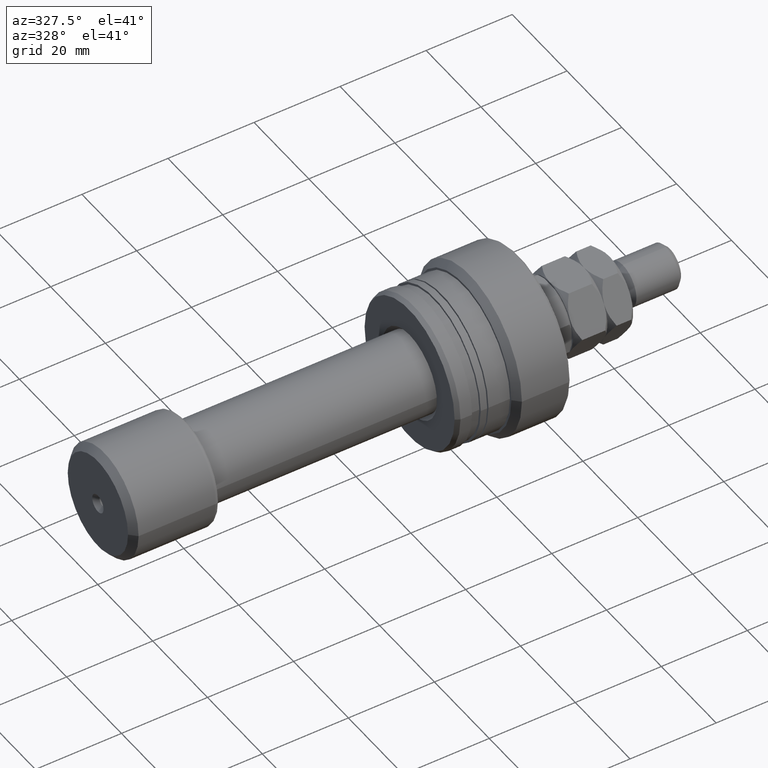
[diagram: clean part render]
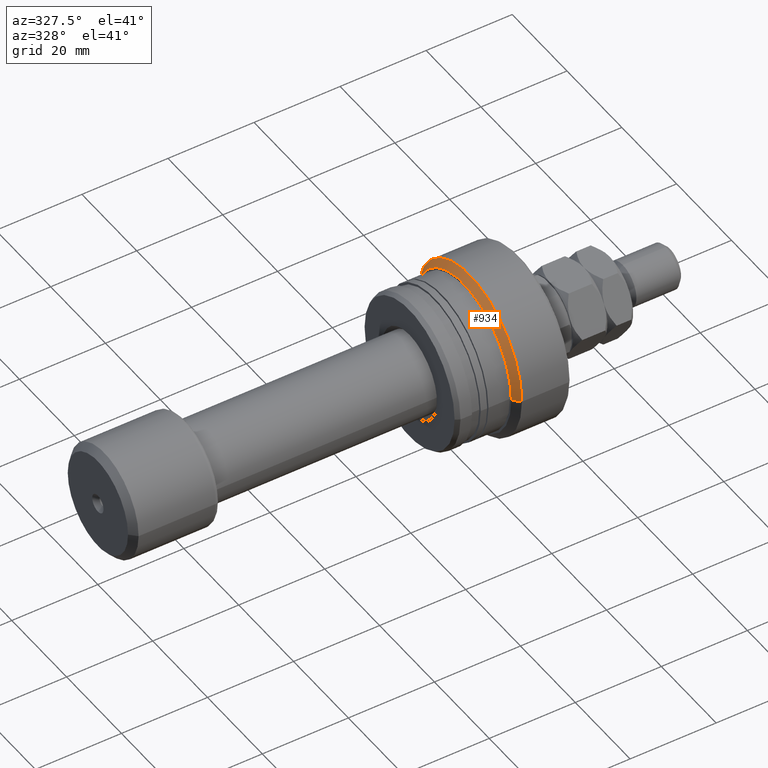
[diagram: same view with one face highlighted and labeled with its STEP entity id]
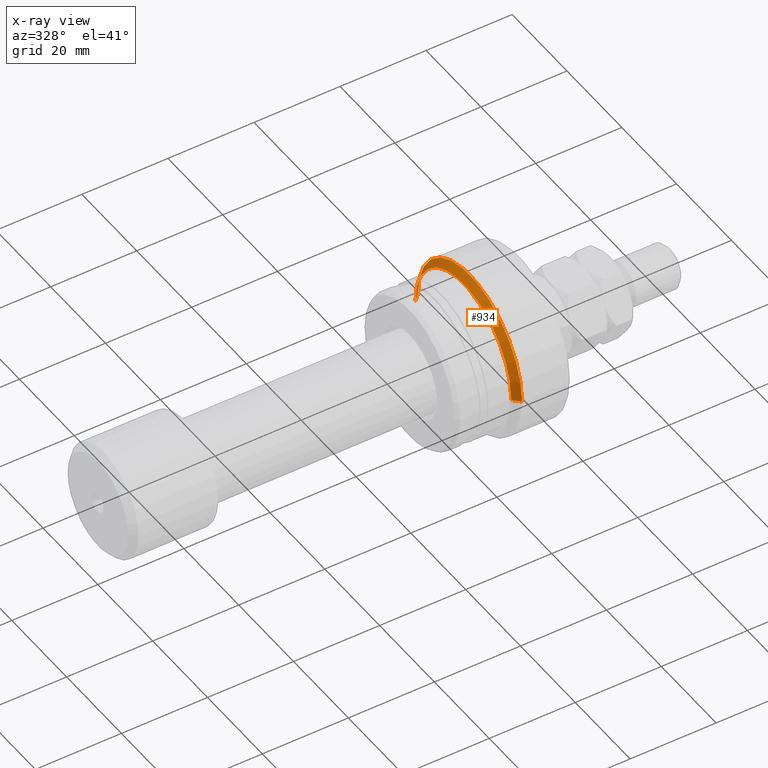
[diagram: x-ray of the same camera — body ghosted, the highlighted face saturated]
A machine part, auxiliary view. The second image highlights one B-rep face of the part: STEP entity #934.
The next image is the same camera in x-ray: the body ghosted, the highlighted face saturated — about 1% of this face is hidden behind the body in this view.
In plain terms, the highlighted conical surface has half-angle 45 deg.
Its self-contained STEP definition (entity closure, byte-faithful):
#59 = CARTESIAN_POINT ( 'NONE',  ( -13.99999999999998046, -1.597083568161236364E-14, 0.000000000000000000 ) ) ;
#212 = AXIS2_PLACEMENT_3D ( 'NONE', #59, #3431, #2773 ) ;
#270 = CARTESIAN_POINT ( 'NONE',  ( -13.99999999999996447, 17.50000000000065725, 0.000000000000000000 ) ) ;
#306 = EDGE_CURVE ( 'NONE', #1673, #3652, #3447, .T. ) ;
#531 = AXIS2_PLACEMENT_3D ( 'NONE', #1071, #2302, #1902 ) ;
#744 = VECTOR ( 'NONE', #1149, 999.9999999999998863 ) ;
#815 = CARTESIAN_POINT ( 'NONE',  ( -13.99999999999999822, -17.50000000000069278, 2.143131898507950684E-15 ) ) ;
#934 = ADVANCED_FACE ( 'NONE', ( #4003 ), #1563, .T. ) ;
#958 = CARTESIAN_POINT ( 'NONE',  ( -12.50000000000064837, 18.99999999999996447, 0.000000000000000000 ) ) ;
#1071 = CARTESIAN_POINT ( 'NONE',  ( -13.99999999999998046, -1.597083568161236364E-14, 0.000000000000000000 ) ) ;
#1099 = EDGE_CURVE ( 'NONE', #2581, #2165, #2077, .T. ) ;
#1149 = DIRECTION ( 'NONE',  ( 0.7071067811865477948, -0.7071067811865473507, 8.659560562354924230E-17 ) ) ;
#1255 = EDGE_LOOP ( 'NONE', ( #1865, #1963, #2034, #3550 ) ) ;
#1276 = CARTESIAN_POINT ( 'NONE',  ( -13.99999999999996447, 17.50000000000065725, 0.000000000000000000 ) ) ;
#1307 = AXIS2_PLACEMENT_3D ( 'NONE', #1367, #2274, #3171 ) ;
#1367 = CARTESIAN_POINT ( 'NONE',  ( -12.50000000000066613, -1.744234796788965300E-14, 0.000000000000000000 ) ) ;
#1563 = CONICAL_SURFACE ( 'NONE', #212, 17.50000000000067502, 0.7853981633974471688 ) ;
#1604 = LINE ( 'NONE', #1276, #3148 ) ;
#1673 = VERTEX_POINT ( 'NONE', #3620 ) ;
#1865 = ORIENTED_EDGE ( 'NONE', *, *, #306, .F. ) ;
#1902 = DIRECTION ( 'NONE',  ( -9.912705577009943938E-16, -1.000000000000000000, 0.000000000000000000 ) ) ;
#1963 = ORIENTED_EDGE ( 'NONE', *, *, #2511, .T. ) ;
#2034 = ORIENTED_EDGE ( 'NONE', *, *, #1099, .T. ) ;
#2077 = CIRCLE ( 'NONE', #1307, 18.99999999999998579 ) ;
#2165 = VERTEX_POINT ( 'NONE', #958 ) ;
#2274 = DIRECTION ( 'NONE',  ( -1.000000000000000000, 9.810081908519753690E-16, -0.000000000000000000 ) ) ;
#2301 = LINE ( 'NONE', #815, #744 ) ;
#2302 = DIRECTION ( 'NONE',  ( -1.000000000000000000, 9.810081908519753690E-16, -0.000000000000000000 ) ) ;
#2360 = EDGE_CURVE ( 'NONE', #3652, #2165, #1604, .T. ) ;
#2511 = EDGE_CURVE ( 'NONE', #1673, #2581, #2301, .T. ) ;
#2581 = VERTEX_POINT ( 'NONE', #3149 ) ;
#2585 = DIRECTION ( 'NONE',  ( 0.7071067811865489050, 0.7071067811865460184, 0.000000000000000000 ) ) ;
#2773 = DIRECTION ( 'NONE',  ( 9.912705577009943938E-16, 1.000000000000000000, 0.000000000000000000 ) ) ;
#3148 = VECTOR ( 'NONE', #2585, 1000.000000000000114 ) ;
#3149 = CARTESIAN_POINT ( 'NONE',  ( -12.50000000000068567, -19.00000000000000711, 2.326828918379969393E-15 ) ) ;
#3171 = DIRECTION ( 'NONE',  ( -1.004313591354994318E-15, -1.000000000000000000, 0.000000000000000000 ) ) ;
#3431 = DIRECTION ( 'NONE',  ( 1.000000000000000000, -9.810081908519753690E-16, 0.000000000000000000 ) ) ;
#3447 = CIRCLE ( 'NONE', #531, 17.50000000000067502 ) ;
#3550 = ORIENTED_EDGE ( 'NONE', *, *, #2360, .F. ) ;
#3620 = CARTESIAN_POINT ( 'NONE',  ( -13.99999999999999822, -17.50000000000069278, 2.234980408443960236E-15 ) ) ;
#3652 = VERTEX_POINT ( 'NONE', #270 ) ;
#4003 = FACE_OUTER_BOUND ( 'NONE', #1255, .T. ) ;